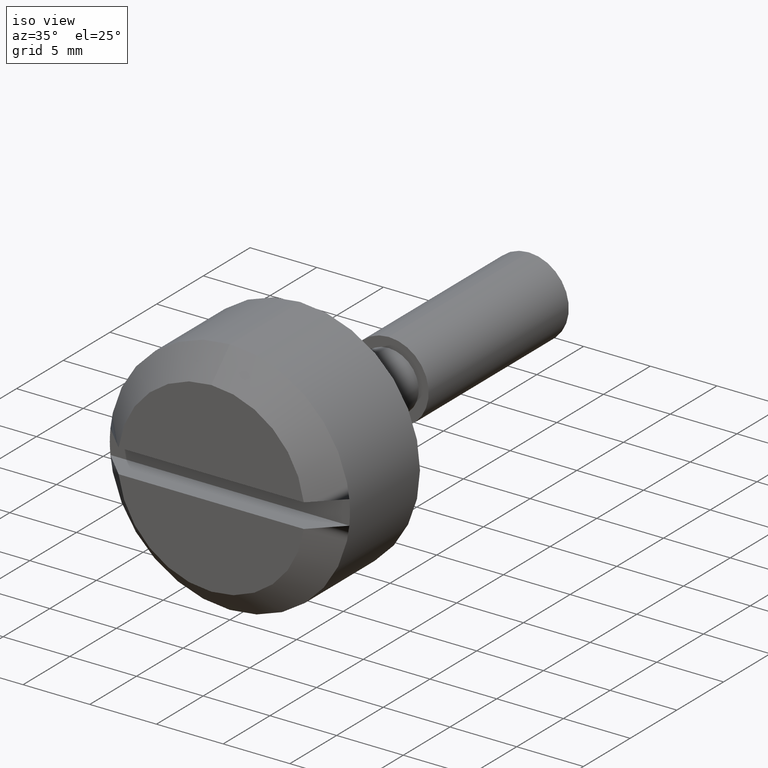
[diagram: clean part render]
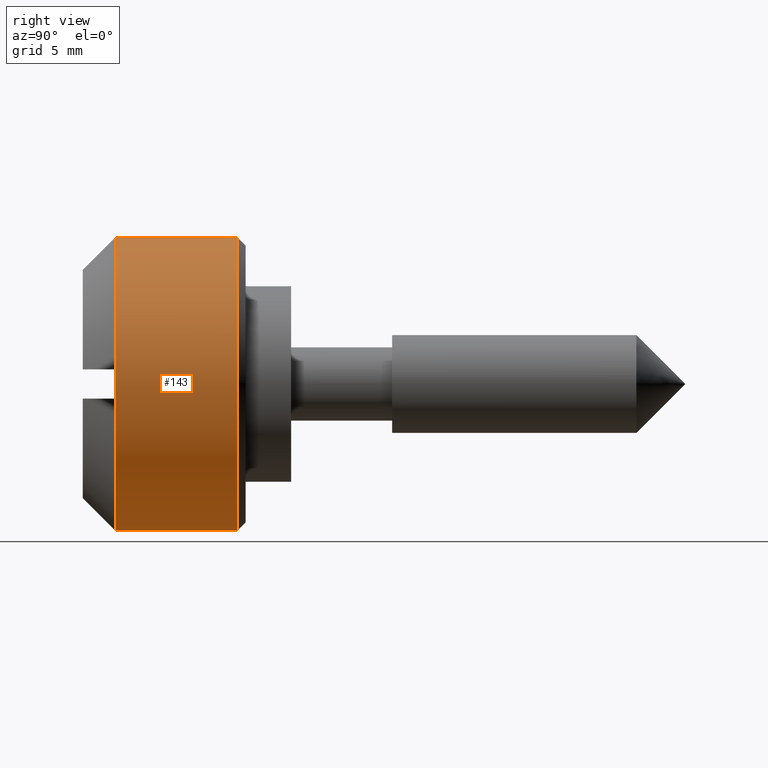
[diagram: tour spotlight — one face highlighted and labeled with its STEP entity id]
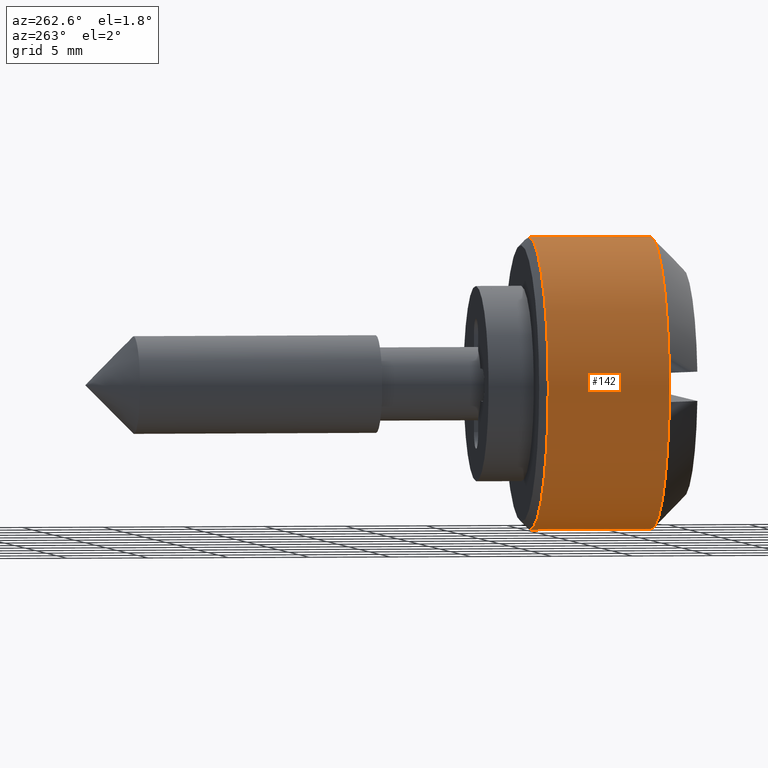
[diagram: tour spotlight — one face highlighted and labeled with its STEP entity id]
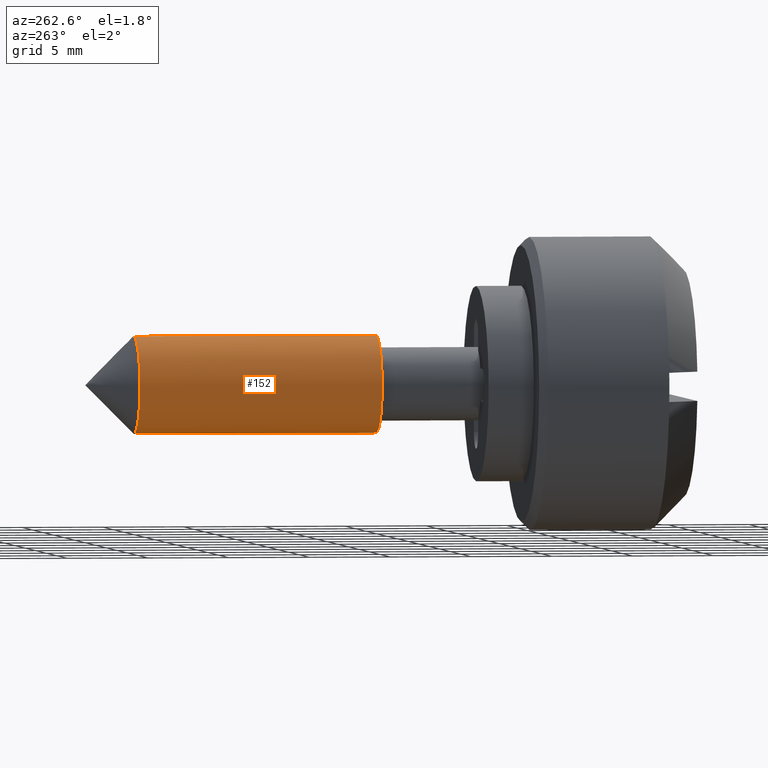
[diagram: tour spotlight — one face highlighted and labeled with its STEP entity id]
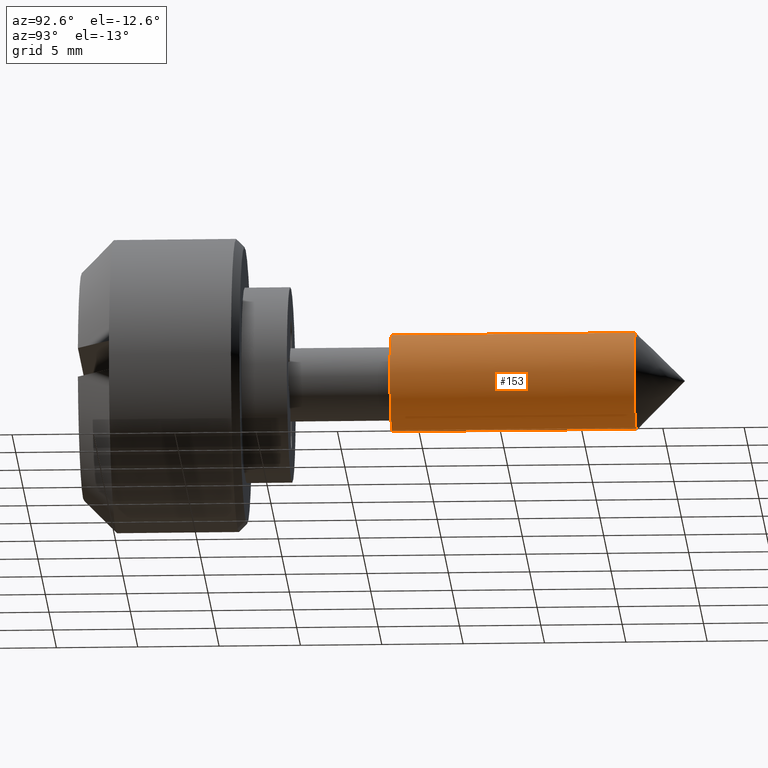
[diagram: tour spotlight — one face highlighted and labeled with its STEP entity id]
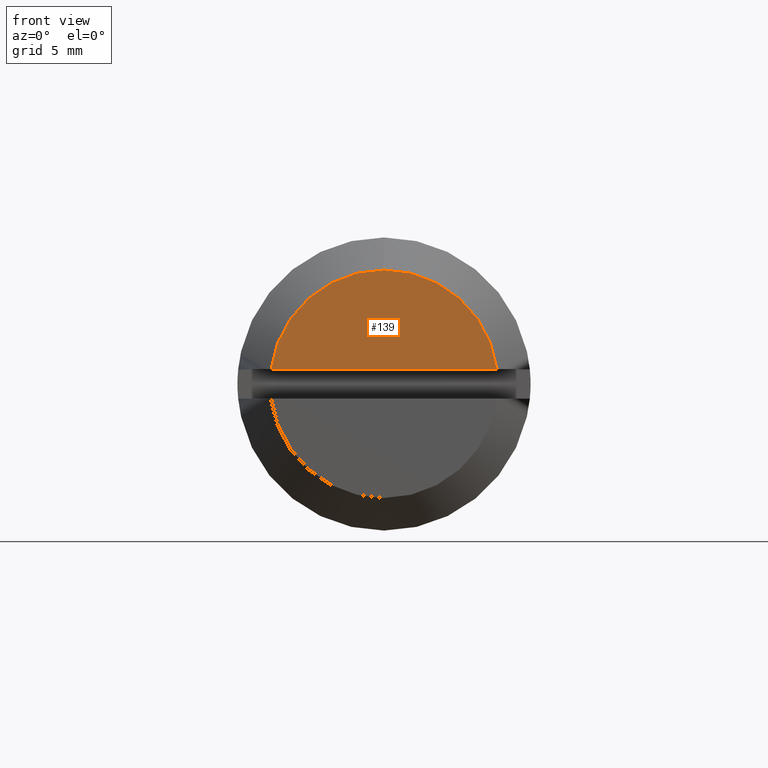
[diagram: tour spotlight — one face highlighted and labeled with its STEP entity id]
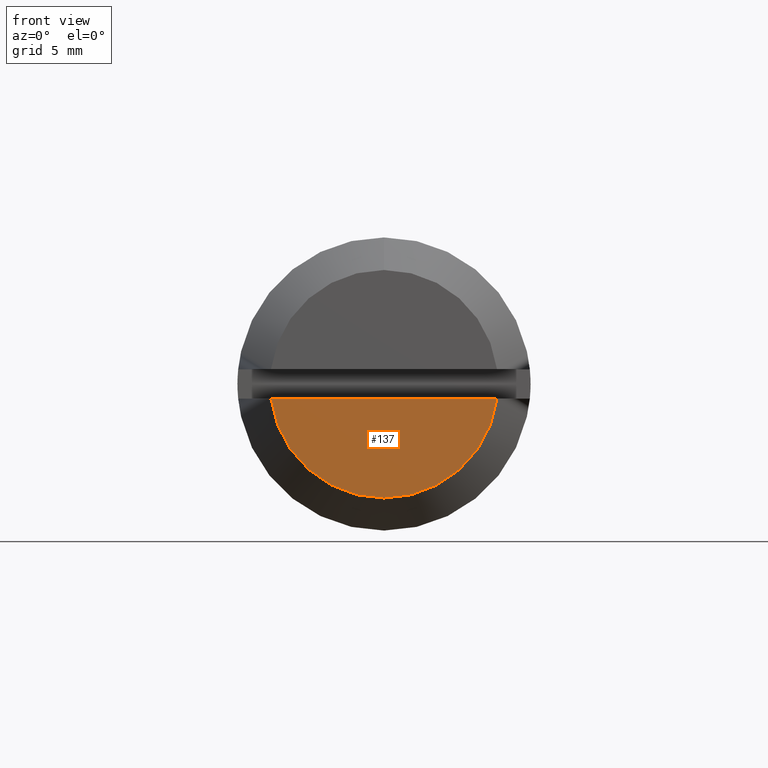
[diagram: tour spotlight — one face highlighted and labeled with its STEP entity id]
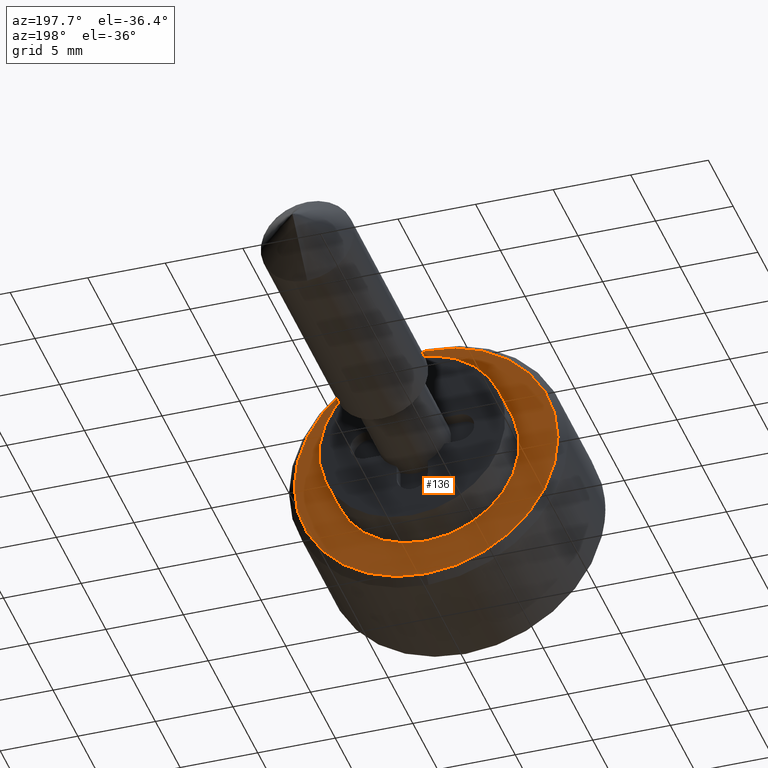
[diagram: tour spotlight — one face highlighted and labeled with its STEP entity id]
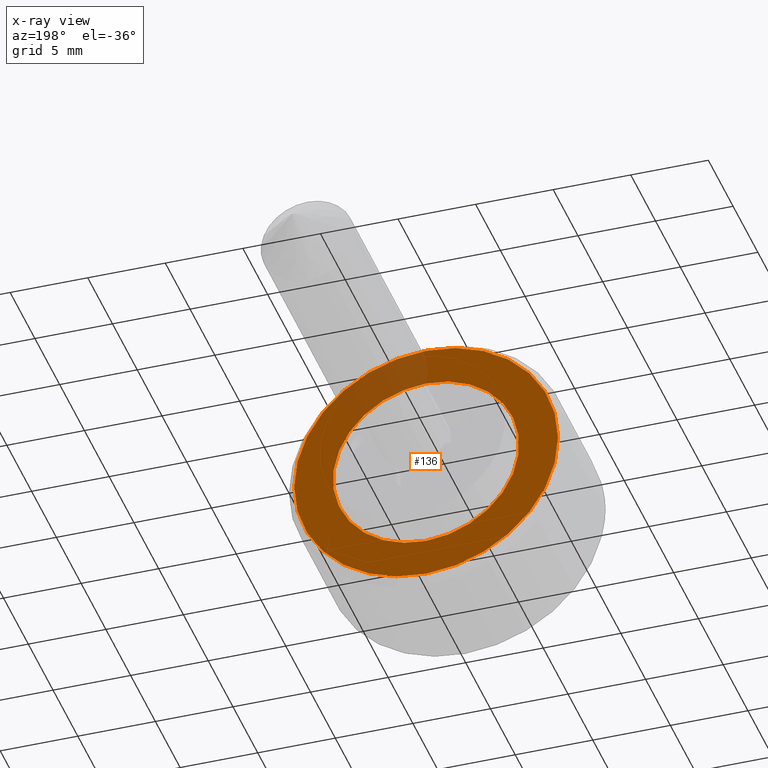
[diagram: x-ray of the same camera — body ghosted, this tour face saturated]
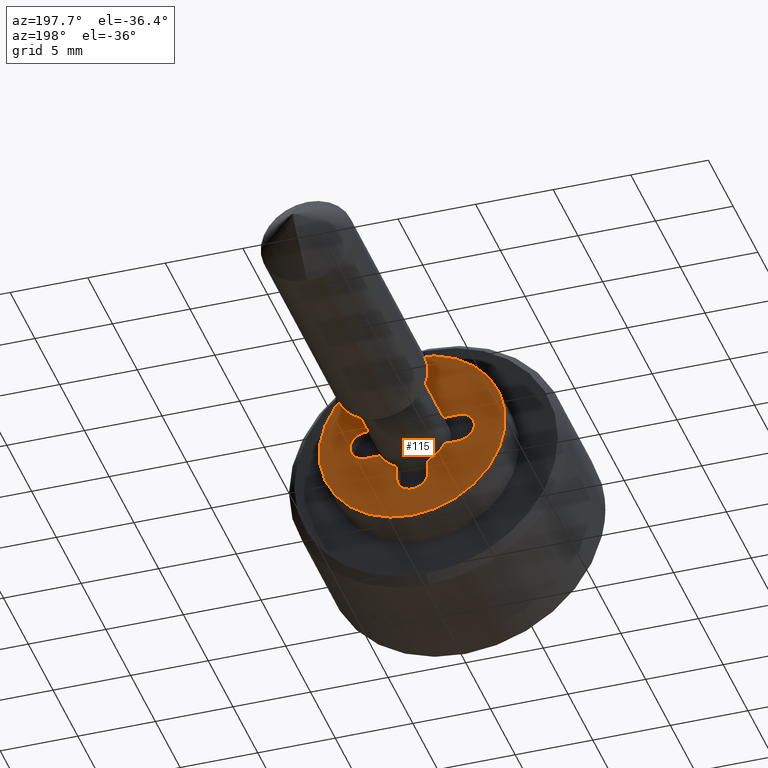
[diagram: tour spotlight — one face highlighted and labeled with its STEP entity id]
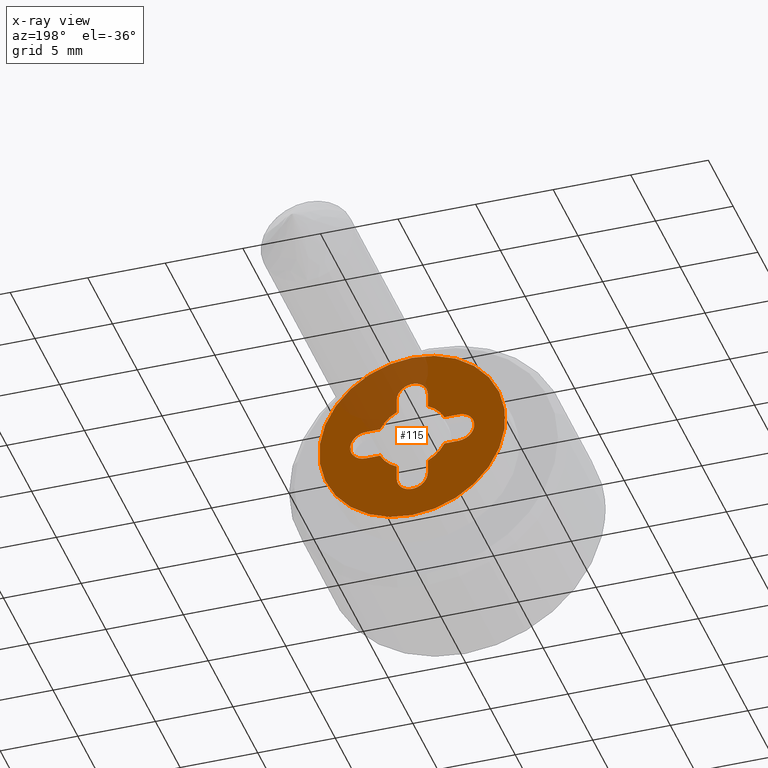
[diagram: x-ray of the same camera — body ghosted, this tour face saturated]
A machine part: a face-by-face anatomy tour. The part has 42 B-rep faces; the first image is the clean iso view, then the 8 largest visible faces are spotlighted one at a time (largest first), each with its STEP entity span.

Face 1 — right view, entity #143. In plain terms, the highlighted cylindrical surface (partial cylindrical patch) has radius 9 mm, axis along (0, -1, -0).
Definition (entity closure, byte-faithful):
#143=ADVANCED_FACE('',(#470),#469,.T.);
#469=CYLINDRICAL_SURFACE('',#754,9.00000000000E+00);
#470=FACE_OUTER_BOUND('',#755,.T.);
#751=CARTESIAN_POINT('',(-1.00200000000E+03,0.00000000000E+00,0.00000000000E+00));
#752=DIRECTION('',(-1.00000000000E+00,-0.00000000000E+00,-0.00000000000E+00));
#753=DIRECTION('',(-0.00000000000E+00,-0.00000000000E+00,1.00000000000E+00));
#754=AXIS2_PLACEMENT_3D('',#751,#752,#753);
#755=EDGE_LOOP('',(#988,#989,#990,#991));
#988=ORIENTED_EDGE('',*,*,#1117,.T.);
#989=ORIENTED_EDGE('',*,*,#1114,.T.);
#990=ORIENTED_EDGE('',*,*,#1110,.F.);
#991=ORIENTED_EDGE('',*,*,#1116,.F.);
#1110=EDGE_CURVE('',#1668,#1669,#1670,.T.);
#1114=EDGE_CURVE('',#1694,#1669,#1695,.T.);
#1116=EDGE_CURVE('',#1701,#1668,#1708,.T.);
#1117=EDGE_CURVE('',#1701,#1694,#1714,.T.);
#1668=VERTEX_POINT('',#2133);
#1669=VERTEX_POINT('',#2134);
#1670=CIRCLE('',#2138,9.00000000000E+00);
#1694=VERTEX_POINT('',#2147);
#1695=(BOUNDED_CURVE() B_SPLINE_CURVE(1,(#2148,#2149),.UNSPECIFIED.,.F.,.F.) B_SPLINE_CURVE_WITH_KNOTS((2,2),(8.33333320912E-02,9.16666667486E-01),.UNSPECIFIED.) CURVE() GEOMETRIC_REPRESENTATION_ITEM() RATIONAL_B_SPLINE_CURVE((1.00000000000E+00,1.00000000000E+00)) REPRESENTATION_ITEM('') );
#1701=VERTEX_POINT('',#2150);
#1708=(BOUNDED_CURVE() B_SPLINE_CURVE(1,(#2155,#2156),.UNSPECIFIED.,.F.,.F.) B_SPLINE_CURVE_WITH_KNOTS((2,2),(8.33333333333E-02,9.16666666667E-01),.UNSPECIFIED.) CURVE() GEOMETRIC_REPRESENTATION_ITEM() RATIONAL_B_SPLINE_CURVE((7.50000000000E-01,7.50000000000E-01)) REPRESENTATION_ITEM('') );
#1714=CIRCLE('',#2160,9.00000000000E+00);
#2133=CARTESIAN_POINT('',(-9.99990000000E+00,5.92118946467E-16,-9.00000000000E+00));
#2134=CARTESIAN_POINT('',(-9.99990000000E+00,0.00000000000E+00,9.00000000000E+00));
#2135=CARTESIAN_POINT('',(-9.99990000000E+00,0.00000000000E+00,0.00000000000E+00));
#2136=DIRECTION('',(-1.00000000000E+00,0.00000000000E+00,0.00000000000E+00));
#2137=DIRECTION('',(0.00000000000E+00,-1.22460635382E-16,1.00000000000E+00));
#2138=AXIS2_PLACEMENT_3D('',#2135,#2136,#2137);
#2147=CARTESIAN_POINT('',(-2.50000000000E+00,-2.66453525910E-15,9.00000000000E+00));
#2148=CARTESIAN_POINT('',(-2.49999998882E+00,0.00000000000E+00,9.00000000000E+00));
#2149=CARTESIAN_POINT('',(-9.99990000737E+00,0.00000000000E+00,9.00000000000E+00));
#2150=CARTESIAN_POINT('',(-2.50000000000E+00,0.00000000000E+00,-9.00000000000E+00));
#2155=CARTESIAN_POINT('',(-2.50000000000E+00,-5.92118946467E-16,-9.00000000000E+00));
#2156=CARTESIAN_POINT('',(-9.99990000000E+00,-5.92118946467E-16,-9.00000000000E+00));
#2157=CARTESIAN_POINT('',(-2.50000000000E+00,0.00000000000E+00,0.00000000000E+00));
#2158=DIRECTION('',(-1.00000000000E+00,0.00000000000E+00,-0.00000000000E+00));
#2159=DIRECTION('',(0.00000000000E+00,-1.22460635382E-16,-1.00000000000E+00));
#2160=AXIS2_PLACEMENT_3D('',#2157,#2158,#2159);

Face 2 — auxiliary view, entity #142. In plain terms, the highlighted cylindrical surface (partial cylindrical patch) has radius 9 mm, axis along (0, -1, -0).
Definition (entity closure, byte-faithful):
#142=ADVANCED_FACE('',(#460),#459,.T.);
#459=CYLINDRICAL_SURFACE('',#749,9.00000000000E+00);
#460=FACE_OUTER_BOUND('',#750,.T.);
#746=CARTESIAN_POINT('',(-1.00200000000E+03,0.00000000000E+00,0.00000000000E+00));
#747=DIRECTION('',(-1.00000000000E+00,-0.00000000000E+00,-0.00000000000E+00));
#748=DIRECTION('',(-0.00000000000E+00,-0.00000000000E+00,1.00000000000E+00));
#749=AXIS2_PLACEMENT_3D('',#746,#747,#748);
#750=EDGE_LOOP('',(#984,#985,#986,#987));
#984=ORIENTED_EDGE('',*,*,#1113,.F.);
#985=ORIENTED_EDGE('',*,*,#1114,.F.);
#986=ORIENTED_EDGE('',*,*,#1115,.T.);
#987=ORIENTED_EDGE('',*,*,#1116,.T.);
#1113=EDGE_CURVE('',#1669,#1668,#1688,.T.);
#1114=EDGE_CURVE('',#1694,#1669,#1695,.T.);
#1115=EDGE_CURVE('',#1694,#1701,#1702,.T.);
#1116=EDGE_CURVE('',#1701,#1668,#1708,.T.);
#1668=VERTEX_POINT('',#2133);
#1669=VERTEX_POINT('',#2134);
#1688=CIRCLE('',#2146,9.00000000000E+00);
#1694=VERTEX_POINT('',#2147);
#1695=(BOUNDED_CURVE() B_SPLINE_CURVE(1,(#2148,#2149),.UNSPECIFIED.,.F.,.F.) B_SPLINE_CURVE_WITH_KNOTS((2,2),(8.33333320912E-02,9.16666667486E-01),.UNSPECIFIED.) CURVE() GEOMETRIC_REPRESENTATION_ITEM() RATIONAL_B_SPLINE_CURVE((1.00000000000E+00,1.00000000000E+00)) REPRESENTATION_ITEM('') );
#1701=VERTEX_POINT('',#2150);
#1702=CIRCLE('',#2154,9.00000000000E+00);
#1708=(BOUNDED_CURVE() B_SPLINE_CURVE(1,(#2155,#2156),.UNSPECIFIED.,.F.,.F.) B_SPLINE_CURVE_WITH_KNOTS((2,2),(8.33333333333E-02,9.16666666667E-01),.UNSPECIFIED.) CURVE() GEOMETRIC_REPRESENTATION_ITEM() RATIONAL_B_SPLINE_CURVE((7.50000000000E-01,7.50000000000E-01)) REPRESENTATION_ITEM('') );
#2133=CARTESIAN_POINT('',(-9.99990000000E+00,5.92118946467E-16,-9.00000000000E+00));
#2134=CARTESIAN_POINT('',(-9.99990000000E+00,0.00000000000E+00,9.00000000000E+00));
#2143=CARTESIAN_POINT('',(-9.99990000000E+00,0.00000000000E+00,0.00000000000E+00));
#2144=DIRECTION('',(-1.00000000000E+00,0.00000000000E+00,0.00000000000E+00));
#2145=DIRECTION('',(0.00000000000E+00,-1.22460635382E-16,1.00000000000E+00));
#2146=AXIS2_PLACEMENT_3D('',#2143,#2144,#2145);
#2147=CARTESIAN_POINT('',(-2.50000000000E+00,-2.66453525910E-15,9.00000000000E+00));
#2148=CARTESIAN_POINT('',(-2.49999998882E+00,0.00000000000E+00,9.00000000000E+00));
#2149=CARTESIAN_POINT('',(-9.99990000737E+00,0.00000000000E+00,9.00000000000E+00));
#2150=CARTESIAN_POINT('',(-2.50000000000E+00,0.00000000000E+00,-9.00000000000E+00));
#2151=CARTESIAN_POINT('',(-2.50000000000E+00,0.00000000000E+00,0.00000000000E+00));
#2152=DIRECTION('',(-1.00000000000E+00,0.00000000000E+00,-0.00000000000E+00));
#2153=DIRECTION('',(0.00000000000E+00,-1.22460635382E-16,-1.00000000000E+00));
#2154=AXIS2_PLACEMENT_3D('',#2151,#2152,#2153);
#2155=CARTESIAN_POINT('',(-2.50000000000E+00,-5.92118946467E-16,-9.00000000000E+00));
#2156=CARTESIAN_POINT('',(-9.99990000000E+00,-5.92118946467E-16,-9.00000000000E+00));

Face 3 — auxiliary view, entity #152. In plain terms, the highlighted cylindrical surface (partial cylindrical patch) has radius 3 mm, axis along (0, 1, 0).
Definition (entity closure, byte-faithful):
#152=ADVANCED_FACE('',(#560),#559,.T.);
#559=CYLINDRICAL_SURFACE('',#823,3.00000000000E+00);
#560=FACE_OUTER_BOUND('',#824,.T.);
#820=CARTESIAN_POINT('',(0.00000000000E+00,0.00000000000E+00,0.00000000000E+00));
#821=DIRECTION('',(1.00000000000E+00,-0.00000000000E+00,-0.00000000000E+00));
#822=DIRECTION('',(0.00000000000E+00,0.00000000000E+00,-1.00000000000E+00));
#823=AXIS2_PLACEMENT_3D('',#820,#821,#822);
#824=EDGE_LOOP('',(#1022,#1023,#1024,#1025));
#1022=ORIENTED_EDGE('',*,*,#1127,.T.);
#1023=ORIENTED_EDGE('',*,*,#1128,.F.);
#1024=ORIENTED_EDGE('',*,*,#1104,.F.);
#1025=ORIENTED_EDGE('',*,*,#1129,.T.);
#1104=EDGE_CURVE('',#1627,#1628,#1629,.T.);
#1127=EDGE_CURVE('',#1757,#1756,#1777,.T.);
#1128=EDGE_CURVE('',#1628,#1756,#1783,.T.);
#1129=EDGE_CURVE('',#1627,#1757,#1789,.T.);
#1627=VERTEX_POINT('',#2104);
#1628=VERTEX_POINT('',#2105);
#1629=CIRCLE('',#2109,3.00000000000E+00);
#1756=VERTEX_POINT('',#2173);
#1757=VERTEX_POINT('',#2174);
#1777=CIRCLE('',#2187,3.00000000000E+00);
#1783=(BOUNDED_CURVE() B_SPLINE_CURVE(1,(#2188,#2189),.UNSPECIFIED.,.F.,.F.) B_SPLINE_CURVE_WITH_KNOTS((2,2),(8.33333328360E-02,9.16666666871E-01),.UNSPECIFIED.) CURVE() GEOMETRIC_REPRESENTATION_ITEM() RATIONAL_B_SPLINE_CURVE((1.00000000000E+00,1.00000000000E+00)) REPRESENTATION_ITEM('') );
#1789=(BOUNDED_CURVE() B_SPLINE_CURVE(1,(#2190,#2191),.UNSPECIFIED.,.F.,.F.) B_SPLINE_CURVE_WITH_KNOTS((2,2),(8.33333333333E-02,9.16666666667E-01),.UNSPECIFIED.) CURVE() GEOMETRIC_REPRESENTATION_ITEM() RATIONAL_B_SPLINE_CURVE((7.50000000000E-01,7.50000000000E-01)) REPRESENTATION_ITEM('') );
#2104=CARTESIAN_POINT('',(7.00000000000E+00,0.00000000000E+00,3.00000000000E+00));
#2105=CARTESIAN_POINT('',(7.00000000000E+00,-1.48029736617E-16,-3.00000000000E+00));
#2106=CARTESIAN_POINT('',(7.00000000000E+00,0.00000000000E+00,0.00000000000E+00));
#2107=DIRECTION('',(-1.00000000000E+00,0.00000000000E+00,0.00000000000E+00));
#2108=DIRECTION('',(0.00000000000E+00,-1.22460635382E-16,1.00000000000E+00));
#2109=AXIS2_PLACEMENT_3D('',#2106,#2107,#2108);
#2173=CARTESIAN_POINT('',(2.20000000000E+01,-1.48029736617E-16,-3.00000000000E+00));
#2174=CARTESIAN_POINT('',(2.20000000000E+01,0.00000000000E+00,3.00000000000E+00));
#2184=CARTESIAN_POINT('',(2.20000000000E+01,0.00000000000E+00,0.00000000000E+00));
#2185=DIRECTION('',(-1.00000000000E+00,0.00000000000E+00,0.00000000000E+00));
#2186=DIRECTION('',(0.00000000000E+00,-1.22460635382E-16,1.00000000000E+00));
#2187=AXIS2_PLACEMENT_3D('',#2184,#2185,#2186);
#2188=CARTESIAN_POINT('',(6.99999999105E+00,0.00000000000E+00,-3.00000000000E+00));
#2189=CARTESIAN_POINT('',(2.20000000037E+01,0.00000000000E+00,-3.00000000000E+00));
#2190=CARTESIAN_POINT('',(7.00000000000E+00,-1.48029736617E-16,3.00000000000E+00));
#2191=CARTESIAN_POINT('',(2.20000000000E+01,-1.48029736617E-16,3.00000000000E+00));

Face 4 — auxiliary view, entity #153. In plain terms, the highlighted cylindrical surface (partial cylindrical patch) has radius 3 mm, axis along (0, 1, 0).
Definition (entity closure, byte-faithful):
#153=ADVANCED_FACE('',(#570),#569,.T.);
#569=CYLINDRICAL_SURFACE('',#828,3.00000000000E+00);
#570=FACE_OUTER_BOUND('',#829,.T.);
#825=CARTESIAN_POINT('',(0.00000000000E+00,0.00000000000E+00,0.00000000000E+00));
#826=DIRECTION('',(1.00000000000E+00,-0.00000000000E+00,-0.00000000000E+00));
#827=DIRECTION('',(0.00000000000E+00,0.00000000000E+00,-1.00000000000E+00));
#828=AXIS2_PLACEMENT_3D('',#825,#826,#827);
#829=EDGE_LOOP('',(#1026,#1027,#1028,#1029));
#1026=ORIENTED_EDGE('',*,*,#1105,.F.);
#1027=ORIENTED_EDGE('',*,*,#1128,.T.);
#1028=ORIENTED_EDGE('',*,*,#1124,.T.);
#1029=ORIENTED_EDGE('',*,*,#1129,.F.);
#1105=EDGE_CURVE('',#1628,#1627,#1635,.T.);
#1124=EDGE_CURVE('',#1756,#1757,#1758,.T.);
#1128=EDGE_CURVE('',#1628,#1756,#1783,.T.);
#1129=EDGE_CURVE('',#1627,#1757,#1789,.T.);
#1627=VERTEX_POINT('',#2104);
#1628=VERTEX_POINT('',#2105);
#1635=CIRCLE('',#2113,3.00000000000E+00);
#1756=VERTEX_POINT('',#2173);
#1757=VERTEX_POINT('',#2174);
#1758=CIRCLE('',#2178,3.00000000000E+00);
#1783=(BOUNDED_CURVE() B_SPLINE_CURVE(1,(#2188,#2189),.UNSPECIFIED.,.F.,.F.) B_SPLINE_CURVE_WITH_KNOTS((2,2),(8.33333328360E-02,9.16666666871E-01),.UNSPECIFIED.) CURVE() GEOMETRIC_REPRESENTATION_ITEM() RATIONAL_B_SPLINE_CURVE((1.00000000000E+00,1.00000000000E+00)) REPRESENTATION_ITEM('') );
#1789=(BOUNDED_CURVE() B_SPLINE_CURVE(1,(#2190,#2191),.UNSPECIFIED.,.F.,.F.) B_SPLINE_CURVE_WITH_KNOTS((2,2),(8.33333333333E-02,9.16666666667E-01),.UNSPECIFIED.) CURVE() GEOMETRIC_REPRESENTATION_ITEM() RATIONAL_B_SPLINE_CURVE((7.50000000000E-01,7.50000000000E-01)) REPRESENTATION_ITEM('') );
#2104=CARTESIAN_POINT('',(7.00000000000E+00,0.00000000000E+00,3.00000000000E+00));
#2105=CARTESIAN_POINT('',(7.00000000000E+00,-1.48029736617E-16,-3.00000000000E+00));
#2110=CARTESIAN_POINT('',(7.00000000000E+00,0.00000000000E+00,0.00000000000E+00));
#2111=DIRECTION('',(-1.00000000000E+00,0.00000000000E+00,0.00000000000E+00));
#2112=DIRECTION('',(0.00000000000E+00,-1.22460635382E-16,1.00000000000E+00));
#2113=AXIS2_PLACEMENT_3D('',#2110,#2111,#2112);
#2173=CARTESIAN_POINT('',(2.20000000000E+01,-1.48029736617E-16,-3.00000000000E+00));
#2174=CARTESIAN_POINT('',(2.20000000000E+01,0.00000000000E+00,3.00000000000E+00));
#2175=CARTESIAN_POINT('',(2.20000000000E+01,0.00000000000E+00,0.00000000000E+00));
#2176=DIRECTION('',(-1.00000000000E+00,0.00000000000E+00,0.00000000000E+00));
#2177=DIRECTION('',(0.00000000000E+00,-1.22460635382E-16,1.00000000000E+00));
#2178=AXIS2_PLACEMENT_3D('',#2175,#2176,#2177);
#2188=CARTESIAN_POINT('',(6.99999999105E+00,0.00000000000E+00,-3.00000000000E+00));
#2189=CARTESIAN_POINT('',(2.20000000037E+01,0.00000000000E+00,-3.00000000000E+00));
#2190=CARTESIAN_POINT('',(7.00000000000E+00,-1.48029736617E-16,3.00000000000E+00));
#2191=CARTESIAN_POINT('',(2.20000000000E+01,-1.48029736617E-16,3.00000000000E+00));

Face 5 — front view, entity #139. In plain terms, the highlighted planar face has unit normal (0, 1, 0).
Definition (entity closure, byte-faithful):
#139=ADVANCED_FACE('',(#430),#429,.F.);
#429=PLANE('',#722);
#430=FACE_OUTER_BOUND('',#723,.T.);
#719=CARTESIAN_POINT('',(-1.19999000000E+01,-8.33028210806E+00,2.90000000000E-01));
#720=DIRECTION('',(1.00000000000E+00,0.00000000000E+00,0.00000000000E+00));
#721=DIRECTION('',(0.00000000000E+00,1.00000000000E+00,0.00000000000E+00));
#722=AXIS2_PLACEMENT_3D('',#719,#720,#721);
#723=EDGE_LOOP('',(#965,#966,#967));
#965=ORIENTED_EDGE('',*,*,#1087,.T.);
#966=ORIENTED_EDGE('',*,*,#1108,.T.);
#967=ORIENTED_EDGE('',*,*,#1109,.T.);
#1087=EDGE_CURVE('',#1491,#1505,#1512,.T.);
#1108=EDGE_CURVE('',#1505,#1655,#1656,.T.);
#1109=EDGE_CURVE('',#1655,#1491,#1662,.T.);
#1491=VERTEX_POINT('',#2012);
#1505=VERTEX_POINT('',#2021);
#1512=LINE('',#2026,#2027);
#1655=VERTEX_POINT('',#2124);
#1656=CIRCLE('',#2128,7.00000000000E+00);
#1662=CIRCLE('',#2132,7.00000000000E+00);
#2012=CARTESIAN_POINT('',(-1.19999000000E+01,6.94190175672E+00,9.00000000000E-01));
#2021=CARTESIAN_POINT('',(-1.19999000000E+01,-6.94190175672E+00,9.00000000000E-01));
#2026=CARTESIAN_POINT('',(-1.19999000000E+01,6.94190175672E+00,9.00000000000E-01));
#2027=VECTOR('',#2028,1.38838035134E+01);
#2028=DIRECTION('',(0.00000000000E+00,-1.00000000000E+00,0.00000000000E+00));
#2124=CARTESIAN_POINT('',(-1.19999000000E+01,-7.64783999247E-11,7.00000000000E+00));
#2125=CARTESIAN_POINT('',(-1.19999000000E+01,0.00000000000E+00,0.00000000000E+00));
#2126=DIRECTION('',(-1.00000000000E+00,0.00000000000E+00,0.00000000000E+00));
#2127=DIRECTION('',(-0.00000000000E+00,-0.00000000000E+00,-1.00000000000E+00));
#2128=AXIS2_PLACEMENT_3D('',#2125,#2126,#2127);
#2129=CARTESIAN_POINT('',(-1.19999000000E+01,0.00000000000E+00,0.00000000000E+00));
#2130=DIRECTION('',(-1.00000000000E+00,0.00000000000E+00,0.00000000000E+00));
#2131=DIRECTION('',(-0.00000000000E+00,-0.00000000000E+00,-1.00000000000E+00));
#2132=AXIS2_PLACEMENT_3D('',#2129,#2130,#2131);

Face 6 — front view, entity #137. In plain terms, the highlighted planar face has unit normal (0, 1, 0).
Definition (entity closure, byte-faithful):
#137=ADVANCED_FACE('',(#409),#408,.F.);
#408=PLANE('',#711);
#409=FACE_OUTER_BOUND('',#712,.T.);
#708=CARTESIAN_POINT('',(-1.19999000000E+01,-8.33028210806E+00,-7.61000000000E+00));
#709=DIRECTION('',(1.00000000000E+00,0.00000000000E+00,0.00000000000E+00));
#710=DIRECTION('',(0.00000000000E+00,1.00000000000E+00,0.00000000000E+00));
#711=AXIS2_PLACEMENT_3D('',#708,#709,#710);
#712=EDGE_LOOP('',(#958,#959,#960));
#958=ORIENTED_EDGE('',*,*,#1093,.F.);
#959=ORIENTED_EDGE('',*,*,#1102,.T.);
#960=ORIENTED_EDGE('',*,*,#1103,.T.);
#1093=EDGE_CURVE('',#1545,#1538,#1552,.T.);
#1102=EDGE_CURVE('',#1545,#1614,#1615,.T.);
#1103=EDGE_CURVE('',#1614,#1538,#1621,.T.);
#1538=VERTEX_POINT('',#2042);
#1545=VERTEX_POINT('',#2047);
#1552=LINE('',#2052,#2053);
#1614=VERTEX_POINT('',#2095);
#1615=CIRCLE('',#2099,7.00000000000E+00);
#1621=CIRCLE('',#2103,7.00000000000E+00);
#2042=CARTESIAN_POINT('',(-1.19999000000E+01,-6.94190175672E+00,-9.00000000000E-01));
#2047=CARTESIAN_POINT('',(-1.19999000000E+01,6.94190175672E+00,-9.00000000000E-01));
#2052=CARTESIAN_POINT('',(-1.19999000000E+01,6.94190175672E+00,-9.00000000000E-01));
#2053=VECTOR('',#2054,1.38838035134E+01);
#2054=DIRECTION('',(0.00000000000E+00,-1.00000000000E+00,0.00000000000E+00));
#2095=CARTESIAN_POINT('',(-1.19999000000E+01,4.46131334097E-11,-7.00000000000E+00));
#2096=CARTESIAN_POINT('',(-1.19999000000E+01,0.00000000000E+00,0.00000000000E+00));
#2097=DIRECTION('',(-1.00000000000E+00,0.00000000000E+00,0.00000000000E+00));
#2098=DIRECTION('',(-0.00000000000E+00,9.91700250960E-01,-1.28571428572E-01));
#2099=AXIS2_PLACEMENT_3D('',#2096,#2097,#2098);
#2100=CARTESIAN_POINT('',(-1.19999000000E+01,0.00000000000E+00,0.00000000000E+00));
#2101=DIRECTION('',(-1.00000000000E+00,0.00000000000E+00,0.00000000000E+00));
#2102=DIRECTION('',(-0.00000000000E+00,9.91700250960E-01,-1.28571428572E-01));
#2103=AXIS2_PLACEMENT_3D('',#2100,#2101,#2102);

Face 7 — auxiliary view, entity #136. An x-ray twin of the same camera follows (body ghosted, this face saturated) — the face is partly hidden behind the body. In plain terms, the highlighted planar face has unit normal (0, 1, 0).
Definition (entity closure, byte-faithful):
#136=ADVANCED_FACE('',(#398,#399),#397,.T.);
#397=PLANE('',#705);
#398=FACE_OUTER_BOUND('',#706,.T.);
#399=FACE_BOUND('',#707,.T.);
#702=CARTESIAN_POINT('',(-2.00000000000E+00,-1.76669182372E+01,-1.10500000000E+01));
#703=DIRECTION('',(1.00000000000E+00,0.00000000000E+00,0.00000000000E+00));
#704=DIRECTION('',(0.00000000000E+00,1.00000000000E+00,0.00000000000E+00));
#705=AXIS2_PLACEMENT_3D('',#702,#703,#704);
#706=EDGE_LOOP('',(#954,#955));
#707=EDGE_LOOP('',(#956,#957));
#954=ORIENTED_EDGE('',*,*,#1098,.T.);
#955=ORIENTED_EDGE('',*,*,#1099,.T.);
#956=ORIENTED_EDGE('',*,*,#1100,.T.);
#957=ORIENTED_EDGE('',*,*,#1101,.T.);
#1098=EDGE_CURVE('',#1586,#1587,#1588,.T.);
#1099=EDGE_CURVE('',#1587,#1586,#1594,.T.);
#1100=EDGE_CURVE('',#1600,#1601,#1602,.T.);
#1101=EDGE_CURVE('',#1601,#1600,#1608,.T.);
#1586=VERTEX_POINT('',#2075);
#1587=VERTEX_POINT('',#2076);
#1588=CIRCLE('',#2080,8.50000000000E+00);
#1594=CIRCLE('',#2084,8.50000000000E+00);
#1600=VERTEX_POINT('',#2085);
#1601=VERTEX_POINT('',#2086);
#1602=CIRCLE('',#2090,6.00000000000E+00);
#1608=CIRCLE('',#2094,6.00000000000E+00);
#2075=CARTESIAN_POINT('',(-2.00000000000E+00,0.00000000000E+00,-8.50000000000E+00));
#2076=CARTESIAN_POINT('',(-2.00000000000E+00,8.88178419700E-16,8.50000000000E+00));
#2077=CARTESIAN_POINT('',(-2.00000000000E+00,0.00000000000E+00,0.00000000000E+00));
#2078=DIRECTION('',(1.00000000000E+00,0.00000000000E+00,0.00000000000E+00));
#2079=DIRECTION('',(0.00000000000E+00,-1.22460635382E-16,-1.00000000000E+00));
#2080=AXIS2_PLACEMENT_3D('',#2077,#2078,#2079);
#2081=CARTESIAN_POINT('',(-2.00000000000E+00,0.00000000000E+00,0.00000000000E+00));
#2082=DIRECTION('',(1.00000000000E+00,0.00000000000E+00,0.00000000000E+00));
#2083=DIRECTION('',(0.00000000000E+00,-1.22460635382E-16,-1.00000000000E+00));
#2084=AXIS2_PLACEMENT_3D('',#2081,#2082,#2083);
#2085=CARTESIAN_POINT('',(-2.00000000000E+00,0.00000000000E+00,-6.00000000000E+00));
#2086=CARTESIAN_POINT('',(-2.00000000000E+00,1.18423789293E-15,6.00000000000E+00));
#2087=CARTESIAN_POINT('',(-2.00000000000E+00,0.00000000000E+00,0.00000000000E+00));
#2088=DIRECTION('',(-1.00000000000E+00,0.00000000000E+00,-0.00000000000E+00));
#2089=DIRECTION('',(0.00000000000E+00,-1.22460635382E-16,-1.00000000000E+00));
#2090=AXIS2_PLACEMENT_3D('',#2087,#2088,#2089);
#2091=CARTESIAN_POINT('',(-2.00000000000E+00,0.00000000000E+00,0.00000000000E+00));
#2092=DIRECTION('',(-1.00000000000E+00,0.00000000000E+00,-0.00000000000E+00));
#2093=DIRECTION('',(0.00000000000E+00,-1.22460635382E-16,-1.00000000000E+00));
#2094=AXIS2_PLACEMENT_3D('',#2091,#2092,#2093);

Face 8 — auxiliary view, entity #115. An x-ray twin of the same camera follows (body ghosted, this face saturated) — the face is partly hidden behind the body. In plain terms, the highlighted planar face has unit normal (0, 1, 0).
Definition (entity closure, byte-faithful):
#115=ADVANCED_FACE('',(#185,#186),#184,.T.);
#184=PLANE('',#597);
#185=FACE_OUTER_BOUND('',#598,.T.);
#186=FACE_BOUND('',#599,.T.);
#594=CARTESIAN_POINT('',(-1.24707658145E+01,8.00000000000E-01,7.80000000000E+00));
#595=DIRECTION('',(-0.00000000000E+00,1.00000000000E+00,0.00000000000E+00));
#596=DIRECTION('',(1.00000000000E+00,0.00000000000E+00,0.00000000000E+00));
#597=AXIS2_PLACEMENT_3D('',#594,#595,#596);
#598=EDGE_LOOP('',(#842,#843));
#599=EDGE_LOOP('',(#844,#845,#846,#847,#848,#849,#850,#851,#852,#853,#854,#855,#856,#857,#858,#859));
#842=ORIENTED_EDGE('',*,*,#1040,.F.);
#843=ORIENTED_EDGE('',*,*,#1041,.F.);
#844=ORIENTED_EDGE('',*,*,#1042,.T.);
#845=ORIENTED_EDGE('',*,*,#1043,.T.);
#846=ORIENTED_EDGE('',*,*,#1044,.T.);
#847=ORIENTED_EDGE('',*,*,#1045,.T.);
#848=ORIENTED_EDGE('',*,*,#1046,.T.);
#849=ORIENTED_EDGE('',*,*,#1047,.T.);
#850=ORIENTED_EDGE('',*,*,#1048,.T.);
#851=ORIENTED_EDGE('',*,*,#1038,.T.);
#852=ORIENTED_EDGE('',*,*,#1032,.T.);
#853=ORIENTED_EDGE('',*,*,#1036,.T.);
#854=ORIENTED_EDGE('',*,*,#1049,.T.);
#855=ORIENTED_EDGE('',*,*,#1050,.T.);
#856=ORIENTED_EDGE('',*,*,#1051,.T.);
#857=ORIENTED_EDGE('',*,*,#1052,.T.);
#858=ORIENTED_EDGE('',*,*,#1053,.T.);
#859=ORIENTED_EDGE('',*,*,#1054,.T.);
#1032=EDGE_CURVE('',#1145,#1138,#1146,.T.);
#1036=EDGE_CURVE('',#1138,#1165,#1172,.T.);
#1038=EDGE_CURVE('',#1185,#1145,#1186,.T.);
#1040=EDGE_CURVE('',#1198,#1199,#1200,.T.);
#1041=EDGE_CURVE('',#1199,#1198,#1206,.T.);
#1042=EDGE_CURVE('',#1212,#1213,#1214,.T.);
#1043=EDGE_CURVE('',#1213,#1220,#1221,.T.);
#1044=EDGE_CURVE('',#1220,#1227,#1228,.T.);
#1045=EDGE_CURVE('',#1227,#1234,#1235,.T.);
#1046=EDGE_CURVE('',#1234,#1241,#1242,.T.);
#1047=EDGE_CURVE('',#1241,#1248,#1249,.T.);
#1048=EDGE_CURVE('',#1248,#1185,#1255,.T.);
#1049=EDGE_CURVE('',#1165,#1261,#1262,.T.);
#1050=EDGE_CURVE('',#1261,#1268,#1269,.T.);
#1051=EDGE_CURVE('',#1268,#1275,#1276,.T.);
#1052=EDGE_CURVE('',#1275,#1282,#1283,.T.);
#1053=EDGE_CURVE('',#1282,#1289,#1290,.T.);
#1054=EDGE_CURVE('',#1289,#1212,#1296,.T.);
#1138=VERTEX_POINT('',#1801);
#1145=VERTEX_POINT('',#1805);
#1146=CIRCLE('',#1809,1.00000000000E+00);
#1165=VERTEX_POINT('',#1817);
#1172=LINE('',#1821,#1822);
#1185=VERTEX_POINT('',#1828);
#1186=LINE('',#1829,#1830);
#1198=VERTEX_POINT('',#1835);
#1199=VERTEX_POINT('',#1836);
#1200=CIRCLE('',#1840,6.00000000000E+00);
#1206=CIRCLE('',#1844,6.00000000000E+00);
#1212=VERTEX_POINT('',#1845);
#1213=VERTEX_POINT('',#1846);
#1214=CIRCLE('',#1850,1.00000000000E+00);
#1220=VERTEX_POINT('',#1851);
#1221=LINE('',#1852,#1853);
#1227=VERTEX_POINT('',#1855);
#1228=CIRCLE('',#1859,2.30000000000E+00);
#1234=VERTEX_POINT('',#1860);
#1235=LINE('',#1861,#1862);
#1241=VERTEX_POINT('',#1864);
#1242=CIRCLE('',#1868,1.00000000000E+00);
#1248=VERTEX_POINT('',#1869);
#1249=LINE('',#1870,#1871);
#1255=CIRCLE('',#1876,2.30000000000E+00);
#1261=VERTEX_POINT('',#1877);
#1262=CIRCLE('',#1881,2.30000000000E+00);
#1268=VERTEX_POINT('',#1882);
#1269=LINE('',#1883,#1884);
#1275=VERTEX_POINT('',#1886);
#1276=CIRCLE('',#1890,1.00000000000E+00);
#1282=VERTEX_POINT('',#1891);
#1283=LINE('',#1892,#1893);
#1289=VERTEX_POINT('',#1895);
#1290=CIRCLE('',#1899,2.30000000000E+00);
#1296=LINE('',#1900,#1901);
#1801=CARTESIAN_POINT('',(-3.00000000000E+00,8.00000000000E-01,-1.00000000000E+00));
#1805=CARTESIAN_POINT('',(-3.00000000000E+00,8.00000000000E-01,1.00000000000E+00));
#1806=CARTESIAN_POINT('',(-3.00000000000E+00,8.00000000000E-01,0.00000000000E+00));
#1807=DIRECTION('',(0.00000000000E+00,-1.00000000000E+00,0.00000000000E+00));
#1808=DIRECTION('',(-0.00000000000E+00,-0.00000000000E+00,-1.00000000000E+00));
#1809=AXIS2_PLACEMENT_3D('',#1806,#1807,#1808);
#1817=CARTESIAN_POINT('',(-2.07123151772E+00,8.00000000000E-01,-1.00000000000E+00));
#1821=CARTESIAN_POINT('',(-3.00000000000E+00,8.00000000000E-01,-1.00000000000E+00));
#1822=VECTOR('',#1823,9.28768482279E-01);
#1823=DIRECTION('',(1.00000000000E+00,0.00000000000E+00,0.00000000000E+00));
#1828=CARTESIAN_POINT('',(-2.07123151772E+00,8.00000000000E-01,1.00000000000E+00));
#1829=CARTESIAN_POINT('',(-2.07123151772E+00,8.00000000000E-01,1.00000000000E+00));
#1830=VECTOR('',#1831,9.28768482279E-01);
#1831=DIRECTION('',(-1.00000000000E+00,0.00000000000E+00,0.00000000000E+00));
#1835=CARTESIAN_POINT('',(1.18423789293E-15,8.00000000000E-01,-6.00000000000E+00));
#1836=CARTESIAN_POINT('',(0.00000000000E+00,8.00000000000E-01,6.00000000000E+00));
#1837=CARTESIAN_POINT('',(0.00000000000E+00,8.00000000000E-01,0.00000000000E+00));
#1838=DIRECTION('',(-0.00000000000E+00,-1.00000000000E+00,0.00000000000E+00));
#1839=DIRECTION('',(-1.22460635382E-16,0.00000000000E+00,1.00000000000E+00));
#1840=AXIS2_PLACEMENT_3D('',#1837,#1838,#1839);
#1841=CARTESIAN_POINT('',(0.00000000000E+00,8.00000000000E-01,0.00000000000E+00));
#1842=DIRECTION('',(-0.00000000000E+00,-1.00000000000E+00,0.00000000000E+00));
#1843=DIRECTION('',(-1.22460635382E-16,0.00000000000E+00,1.00000000000E+00));
#1844=AXIS2_PLACEMENT_3D('',#1841,#1842,#1843);
#1845=CARTESIAN_POINT('',(3.00000000000E+00,8.00000000000E-01,-1.00000000000E+00));
#1846=CARTESIAN_POINT('',(3.00000000000E+00,8.00000000000E-01,1.00000000000E+00));
#1847=CARTESIAN_POINT('',(3.00000000000E+00,8.00000000000E-01,0.00000000000E+00));
#1848=DIRECTION('',(0.00000000000E+00,-1.00000000000E+00,0.00000000000E+00));
#1849=DIRECTION('',(-0.00000000000E+00,-0.00000000000E+00,-1.00000000000E+00));
#1850=AXIS2_PLACEMENT_3D('',#1847,#1848,#1849);
#1851=CARTESIAN_POINT('',(2.07123151772E+00,8.00000000000E-01,1.00000000000E+00));
#1852=CARTESIAN_POINT('',(3.00000000000E+00,8.00000000000E-01,1.00000000000E+00));
#1853=VECTOR('',#1854,9.28768482279E-01);
#1854=DIRECTION('',(-1.00000000000E+00,0.00000000000E+00,0.00000000000E+00));
#1855=CARTESIAN_POINT('',(1.00000000000E+00,8.00000000000E-01,2.07123151772E+00));
#1856=CARTESIAN_POINT('',(0.00000000000E+00,8.00000000000E-01,0.00000000000E+00));
#1857=DIRECTION('',(0.00000000000E+00,-1.00000000000E+00,0.00000000000E+00));
#1858=DIRECTION('',(-0.00000000000E+00,-0.00000000000E+00,-1.00000000000E+00));
#1859=AXIS2_PLACEMENT_3D('',#1856,#1857,#1858);
#1860=CARTESIAN_POINT('',(1.00000000000E+00,8.00000000000E-01,3.00000000000E+00));
#1861=CARTESIAN_POINT('',(1.00000000000E+00,8.00000000000E-01,2.07123151772E+00));
#1862=VECTOR('',#1863,9.28768482279E-01);
#1863=DIRECTION('',(0.00000000000E+00,0.00000000000E+00,1.00000000000E+00));
#1864=CARTESIAN_POINT('',(-1.00000000000E+00,8.00000000000E-01,3.00000000000E+00));
#1865=CARTESIAN_POINT('',(0.00000000000E+00,8.00000000000E-01,3.00000000000E+00));
#1866=DIRECTION('',(0.00000000000E+00,-1.00000000000E+00,0.00000000000E+00));
#1867=DIRECTION('',(-0.00000000000E+00,-0.00000000000E+00,-1.00000000000E+00));
#1868=AXIS2_PLACEMENT_3D('',#1865,#1866,#1867);
#1869=CARTESIAN_POINT('',(-1.00000000000E+00,8.00000000000E-01,2.07123151772E+00));
#1870=CARTESIAN_POINT('',(-1.00000000000E+00,8.00000000000E-01,3.00000000000E+00));
#1871=VECTOR('',#1872,9.28768482279E-01);
#1872=DIRECTION('',(0.00000000000E+00,0.00000000000E+00,-1.00000000000E+00));
#1873=CARTESIAN_POINT('',(0.00000000000E+00,8.00000000000E-01,0.00000000000E+00));
#1874=DIRECTION('',(0.00000000000E+00,-1.00000000000E+00,0.00000000000E+00));
#1875=DIRECTION('',(-0.00000000000E+00,-0.00000000000E+00,-1.00000000000E+00));
#1876=AXIS2_PLACEMENT_3D('',#1873,#1874,#1875);
#1877=CARTESIAN_POINT('',(-1.00000000000E+00,8.00000000000E-01,-2.07123151772E+00));
#1878=CARTESIAN_POINT('',(0.00000000000E+00,8.00000000000E-01,0.00000000000E+00));
#1879=DIRECTION('',(0.00000000000E+00,-1.00000000000E+00,0.00000000000E+00));
#1880=DIRECTION('',(-0.00000000000E+00,-0.00000000000E+00,-1.00000000000E+00));
#1881=AXIS2_PLACEMENT_3D('',#1878,#1879,#1880);
#1882=CARTESIAN_POINT('',(-1.00000000000E+00,8.00000000000E-01,-3.00000000000E+00));
#1883=CARTESIAN_POINT('',(-1.00000000000E+00,8.00000000000E-01,-2.07123151772E+00));
#1884=VECTOR('',#1885,9.28768482279E-01);
#1885=DIRECTION('',(0.00000000000E+00,0.00000000000E+00,-1.00000000000E+00));
#1886=CARTESIAN_POINT('',(1.00000000000E+00,8.00000000000E-01,-2.99999982547E+00));
#1887=CARTESIAN_POINT('',(0.00000000000E+00,8.00000000000E-01,-3.00000000000E+00));
#1888=DIRECTION('',(0.00000000000E+00,-1.00000000000E+00,0.00000000000E+00));
#1889=DIRECTION('',(1.00000000000E+00,0.00000000000E+00,1.74532925185E-07));
#1890=AXIS2_PLACEMENT_3D('',#1887,#1888,#1889);
#1891=CARTESIAN_POINT('',(1.00000000000E+00,8.00000000000E-01,-2.07123151772E+00));
#1892=CARTESIAN_POINT('',(1.00000000000E+00,8.00000000000E-01,-2.99999982547E+00));
#1893=VECTOR('',#1894,9.28768307746E-01);
#1894=DIRECTION('',(0.00000000000E+00,0.00000000000E+00,1.00000000000E+00));
#1895=CARTESIAN_POINT('',(2.07123151772E+00,8.00000000000E-01,-1.00000000000E+00));
#1896=CARTESIAN_POINT('',(0.00000000000E+00,8.00000000000E-01,0.00000000000E+00));
#1897=DIRECTION('',(0.00000000000E+00,-1.00000000000E+00,0.00000000000E+00));
#1898=DIRECTION('',(-0.00000000000E+00,-0.00000000000E+00,-1.00000000000E+00));
#1899=AXIS2_PLACEMENT_3D('',#1896,#1897,#1898);
#1900=CARTESIAN_POINT('',(2.07123151772E+00,8.00000000000E-01,-1.00000000000E+00));
#1901=VECTOR('',#1902,9.28768482279E-01);
#1902=DIRECTION('',(1.00000000000E+00,0.00000000000E+00,0.00000000000E+00));